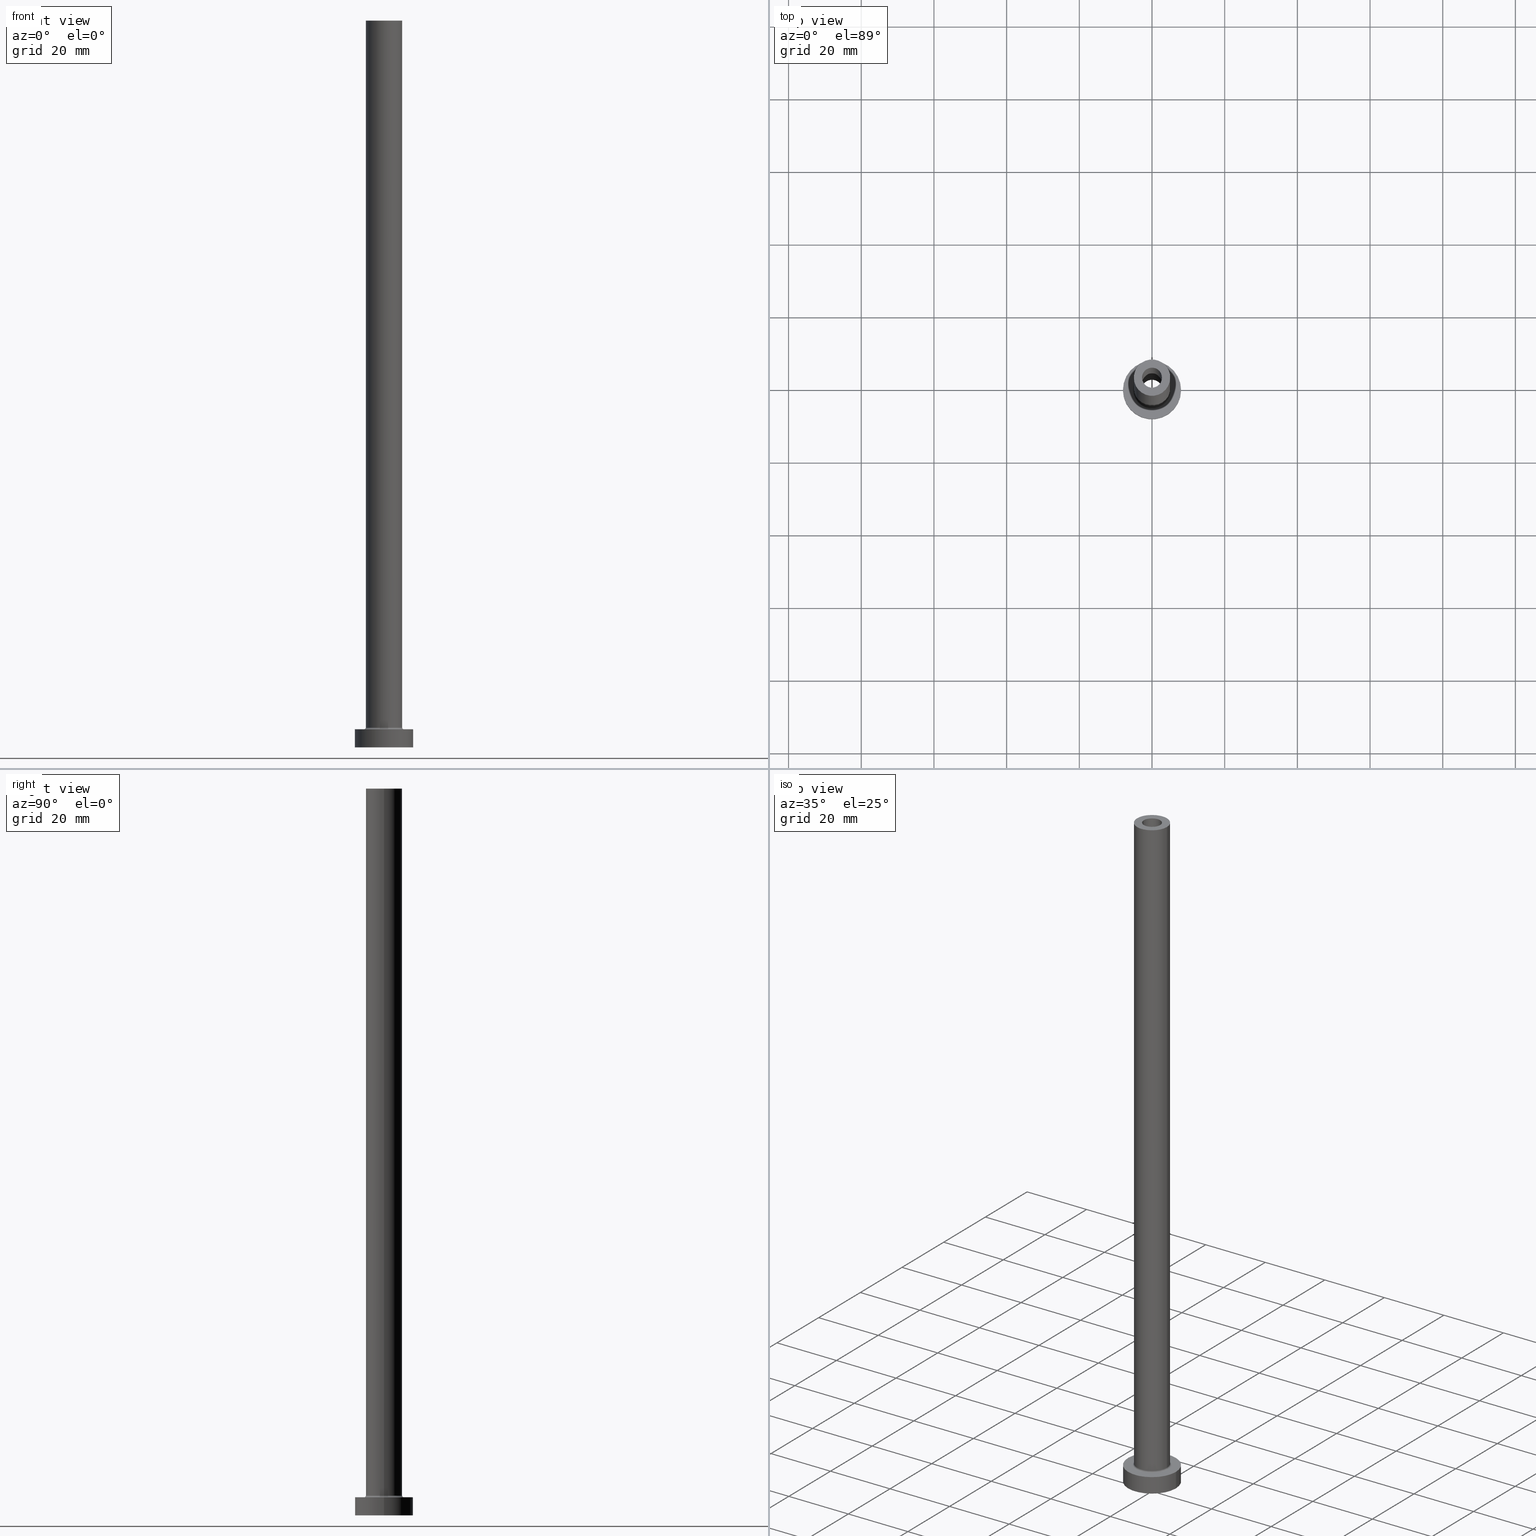
[diagram: canonical four-view strip — front | top / right | iso, engineering-drawing reading convention]
A machine part, canonical four-view strip (front | top / right | iso — engineering-drawing reading convention). The complete STEP part file that produces these views, byte-faithful:
ISO-10303-21;
HEADER;
FILE_DESCRIPTION (( 'STEP AP203' ),
    '1' );
FILE_NAME ('dcbb.STEP',
    '2023-02-13T16:14:24',
    ( '' ),
    ( '' ),
    'SwSTEP 2.0',
    'SolidWorks 2019',
    '' );
FILE_SCHEMA (( 'CONFIG_CONTROL_DESIGN' ));
ENDSEC;

DATA;
#1 = AXIS2_PLACEMENT_3D ( 'NONE', #134, #418, #64 ) ;
#2 = DIRECTION ( 'NONE',  ( 1.000000000000000000, 0.000000000000000000, 0.000000000000000000 ) ) ;
#3 = ORIENTED_EDGE ( 'NONE', *, *, #193, .T. ) ;
#4 = CARTESIAN_POINT ( 'NONE',  ( 8.000000000000000000, 9.797174393178825657E-16, 5.000000000000000000 ) ) ;
#5 = ORIENTED_EDGE ( 'NONE', *, *, #297, .F. ) ;
#6 = EDGE_LOOP ( 'NONE', ( #169, #224 ) ) ;
#7 = CC_DESIGN_PERSON_AND_ORGANIZATION_ASSIGNMENT ( #99, #241, ( #144 ) ) ;
#8 = DIRECTION ( 'NONE',  ( 1.000000000000000000, 0.000000000000000000, 0.000000000000000000 ) ) ;
#9 = EDGE_LOOP ( 'NONE', ( #254, #267, #292, #352 ) ) ;
#10 = DIRECTION ( 'NONE',  ( 0.000000000000000000, 0.000000000000000000, 1.000000000000000000 ) ) ;
#11 = VERTEX_POINT ( 'NONE', #379 ) ;
#12 = CARTESIAN_POINT ( 'NONE',  ( 0.000000000000000000, 0.000000000000000000, 155.0000000000000284 ) ) ;
#13 = EDGE_CURVE ( 'NONE', #433, #295, #139, .T. ) ;
#14 = ORIENTED_EDGE ( 'NONE', *, *, #72, .F. ) ;
#15 = DIRECTION ( 'NONE',  ( 1.000000000000000000, 0.000000000000000000, 0.000000000000000000 ) ) ;
#16 = APPROVAL_DATE_TIME ( #415, #43 ) ;
#17 = AXIS2_PLACEMENT_3D ( 'NONE', #121, #158, #8 ) ;
#18 = PRODUCT ( 'dcbb', 'dcbb', '', ( #42 ) ) ;
#19 = CARTESIAN_POINT ( 'NONE',  ( 0.000000000000000000, 0.000000000000000000, 200.0000000000000000 ) ) ;
#20 = APPROVAL_ROLE ( '' ) ;
#21 = DIRECTION ( 'NONE',  ( 1.000000000000000000, 0.000000000000000000, 0.000000000000000000 ) ) ;
#22 = COORDINATED_UNIVERSAL_TIME_OFFSET ( 1, 0, .AHEAD. ) ;
#23 = CARTESIAN_POINT ( 'NONE',  ( 0.000000000000000000, 0.000000000000000000, 5.000000000000000000 ) ) ;
#24 = CARTESIAN_POINT ( 'NONE',  ( 2.750000000000000000, 3.367778697655220519E-16, 155.0000000000000284 ) ) ;
#25 = ADVANCED_FACE ( 'NONE', ( #376, #90 ), #229, .T. ) ;
#26 = APPLICATION_CONTEXT ( 'configuration controlled 3d designs of mechanical parts and assemblies' ) ;
#27 = CYLINDRICAL_SURFACE ( 'NONE', #217, 8.000000000000000000 ) ;
#28 = ORGANIZATION ( 'NEUR�EN�', 'NEUR�EN�', '' ) ;
#29 = VECTOR ( 'NONE', #177, 1000.000000000000000 ) ;
#30 = ORIENTED_EDGE ( 'NONE', *, *, #183, .F. ) ;
#31 = AXIS2_PLACEMENT_3D ( 'NONE', #368, #338, #161 ) ;
#32 = DIRECTION ( 'NONE',  ( 1.000000000000000000, 0.000000000000000000, 0.000000000000000000 ) ) ;
#33 = VERTEX_POINT ( 'NONE', #127 ) ;
#34 = EDGE_CURVE ( 'NONE', #154, #33, #101, .T. ) ;
#35 = CARTESIAN_POINT ( 'NONE',  ( 0.000000000000000000, 0.000000000000000000, 200.0000000000000000 ) ) ;
#36 = EDGE_LOOP ( 'NONE', ( #363, #387, #430, #402 ) ) ;
#37 = AXIS2_PLACEMENT_3D ( 'NONE', #410, #133, #201 ) ;
#38 = LINE ( 'NONE', #186, #329 ) ;
#39 = APPROVAL_STATUS ( 'not_yet_approved' ) ;
#40 = CARTESIAN_POINT ( 'NONE',  ( -2.750000000000000000, 0.000000000000000000, 200.0000000000000000 ) ) ;
#41 = ORIENTED_EDGE ( 'NONE', *, *, #138, .F. ) ;
#42 = MECHANICAL_CONTEXT ( 'NONE', #26, 'mechanical' ) ;
#43 = APPROVAL ( #39, 'NEUR�EN�' ) ;
#44 = ORIENTED_EDGE ( 'NONE', *, *, #319, .F. ) ;
#45 = FACE_OUTER_BOUND ( 'NONE', #248, .T. ) ;
#46 = PERSON_AND_ORGANIZATION ( #135, #28 ) ;
#47 = EDGE_LOOP ( 'NONE', ( #371, #188, #448, #75 ) ) ;
#48 = CIRCLE ( 'NONE', #305, 5.500000000000000000 ) ;
#49 = ORIENTED_EDGE ( 'NONE', *, *, #319, .T. ) ;
#50 = ADVANCED_FACE ( 'NONE', ( #263 ), #200, .F. ) ;
#51 = DIRECTION ( 'NONE',  ( -1.000000000000000000, 0.000000000000000000, 0.000000000000000000 ) ) ;
#52 = LOCAL_TIME ( 17, 14, 24.00000000000000000, #73 ) ;
#53 = DIRECTION ( 'NONE',  ( 0.000000000000000000, 0.000000000000000000, 1.000000000000000000 ) ) ;
#54 = AXIS2_PLACEMENT_3D ( 'NONE', #199, #129, #51 ) ;
#55 = CARTESIAN_POINT ( 'NONE',  ( 0.000000000000000000, 0.000000000000000000, 5.000000000000000000 ) ) ;
#56 = APPROVAL ( #238, 'NEUR�EN�' ) ;
#57 = FACE_OUTER_BOUND ( 'NONE', #395, .T. ) ;
#58 = DIRECTION ( 'NONE',  ( 0.000000000000000000, 0.000000000000000000, 1.000000000000000000 ) ) ;
#59 = PRODUCT_DEFINITION_SHAPE ( 'NONE', 'NONE',  #372 ) ;
#60 = VERTEX_POINT ( 'NONE', #92 ) ;
#61 = CARTESIAN_POINT ( 'NONE',  ( 0.000000000000000000, 0.000000000000000000, 5.500000000000005329 ) ) ;
#62 = AXIS2_PLACEMENT_3D ( 'NONE', #89, #228, #447 ) ;
#63 = EDGE_CURVE ( 'NONE', #122, #60, #396, .T. ) ;
#64 = DIRECTION ( 'NONE',  ( 0.000000000000000000, 0.000000000000000000, -1.000000000000000000 ) ) ;
#65 = DIRECTION ( 'NONE',  ( -0.000000000000000000, -0.000000000000000000, -1.000000000000000000 ) ) ;
#66 = PLANE ( 'NONE',  #442 ) ;
#67 = LINE ( 'NONE', #346, #421 ) ;
#68 = DIRECTION ( 'NONE',  ( 1.000000000000000000, 0.000000000000000000, -0.000000000000000000 ) ) ;
#69 = LOCAL_TIME ( 17, 14, 24.00000000000000000, #22 ) ;
#70 = AXIS2_PLACEMENT_3D ( 'NONE', #95, #341, #268 ) ;
#71 = DIRECTION ( 'NONE',  ( 0.000000000000000000, 0.000000000000000000, 1.000000000000000000 ) ) ;
#72 = EDGE_CURVE ( 'NONE', #88, #330, #194, .T. ) ;
#73 = COORDINATED_UNIVERSAL_TIME_OFFSET ( 1, 0, .AHEAD. ) ;
#74 = CARTESIAN_POINT ( 'NONE',  ( 0.000000000000000000, 0.000000000000000000, 200.0000000000000000 ) ) ;
#75 = ORIENTED_EDGE ( 'NONE', *, *, #310, .F. ) ;
#76 = CARTESIAN_POINT ( 'NONE',  ( 0.000000000000000000, 0.000000000000000000, 0.000000000000000000 ) ) ;
#77 = ORIENTED_EDGE ( 'NONE', *, *, #333, .T. ) ;
#78 = AXIS2_PLACEMENT_3D ( 'NONE', #212, #350, #32 ) ;
#79 = EDGE_CURVE ( 'NONE', #295, #330, #445, .T. ) ;
#80 = LINE ( 'NONE', #219, #202 ) ;
#81 = EDGE_LOOP ( 'NONE', ( #83, #220 ) ) ;
#82 = CARTESIAN_POINT ( 'NONE',  ( 0.000000000000000000, 0.000000000000000000, 200.0000000000000000 ) ) ;
#83 = ORIENTED_EDGE ( 'NONE', *, *, #63, .F. ) ;
#84 = APPLICATION_PROTOCOL_DEFINITION ( 'international standard', 'config_control_design', 1994, #173 ) ;
#85 = ORIENTED_EDGE ( 'NONE', *, *, #34, .T. ) ;
#86 = AXIS2_PLACEMENT_3D ( 'NONE', #331, #259, #257 ) ;
#87 = CARTESIAN_POINT ( 'NONE',  ( 0.000000000000000000, 0.000000000000000000, 5.500000000000005329 ) ) ;
#88 = VERTEX_POINT ( 'NONE', #384 ) ;
#89 = CARTESIAN_POINT ( 'NONE',  ( 0.000000000000000000, 0.000000000000000000, 155.0000000000000284 ) ) ;
#90 = FACE_OUTER_BOUND ( 'NONE', #207, .T. ) ;
#91 = PERSON_AND_ORGANIZATION ( #135, #28 ) ;
#92 = CARTESIAN_POINT ( 'NONE',  ( 2.899999999999999911, 3.551475717527323339E-16, 0.000000000000000000 ) ) ;
#93 = EDGE_CURVE ( 'NONE', #33, #260, #335, .T. ) ;
#94 = PERSON_AND_ORGANIZATION_ROLE ( 'creator' ) ;
#95 = CARTESIAN_POINT ( 'NONE',  ( -5.500000000000000000, 6.735557395310442023E-16, 5.500000000000005329 ) ) ;
#96 = CARTESIAN_POINT ( 'NONE',  ( 0.000000000000000000, 0.000000000000000000, 5.000000000000000000 ) ) ;
#97 = CALENDAR_DATE ( 2023, 13, 2 ) ;
#98 = ORIENTED_EDGE ( 'NONE', *, *, #255, .T. ) ;
#99 = PERSON_AND_ORGANIZATION ( #135, #28 ) ;
#100 = EDGE_CURVE ( 'NONE', #276, #260, #152, .T. ) ;
#101 = LINE ( 'NONE', #300, #265 ) ;
#102 = DIRECTION ( 'NONE',  ( 0.000000000000000000, 0.000000000000000000, 1.000000000000000000 ) ) ;
#103 = CLOSED_SHELL ( 'NONE', ( #357, #383, #409, #227, #206, #417, #449, #128, #443, #25, #401, #388, #270, #50 ) ) ;
#104 = PERSON_AND_ORGANIZATION ( #135, #28 ) ;
#105 = CIRCLE ( 'NONE', #359, 8.000000000000000000 ) ;
#106 = DESIGN_CONTEXT ( 'detailed design', #173, 'design' ) ;
#107 = LINE ( 'NONE', #458, #343 ) ;
#108 = PLANE ( 'NONE',  #195 ) ;
#109 = DATE_AND_TIME ( #115, #342 ) ;
#110 = APPROVAL_STATUS ( 'not_yet_approved' ) ;
#111 = CARTESIAN_POINT ( 'NONE',  ( -2.899999999999999911, 0.000000000000000000, 163.2024386617639777 ) ) ;
#112 = CIRCLE ( 'NONE', #366, 2.750000000000000000 ) ;
#113 = LINE ( 'NONE', #427, #245 ) ;
#114 = DIRECTION ( 'NONE',  ( -1.000000000000000000, 0.000000000000000000, 0.000000000000000000 ) ) ;
#115 = CALENDAR_DATE ( 2023, 13, 2 ) ;
#116 = EDGE_LOOP ( 'NONE', ( #399, #44 ) ) ;
#117 = EDGE_CURVE ( 'NONE', #179, #276, #411, .T. ) ;
#118 = VERTEX_POINT ( 'NONE', #271 ) ;
#119 = AXIS2_PLACEMENT_3D ( 'NONE', #87, #441, #226 ) ;
#120 = AXIS2_PLACEMENT_3D ( 'NONE', #61, #345, #21 ) ;
#121 = CARTESIAN_POINT ( 'NONE',  ( 0.000000000000000000, 0.000000000000000000, 0.000000000000000000 ) ) ;
#122 = VERTEX_POINT ( 'NONE', #422 ) ;
#123 = ORIENTED_EDGE ( 'NONE', *, *, #147, .F. ) ;
#124 = CC_DESIGN_PERSON_AND_ORGANIZATION_ASSIGNMENT ( #304, #131, ( #172 ) ) ;
#125 = ORIENTED_EDGE ( 'NONE', *, *, #193, .F. ) ;
#126 = CIRCLE ( 'NONE', #390, 5.000000000000000000 ) ;
#127 = CARTESIAN_POINT ( 'NONE',  ( -5.000000000000000000, 0.000000000000000000, 5.500000000000005329 ) ) ;
#128 = ADVANCED_FACE ( 'NONE', ( #386, #320 ), #66, .F. ) ;
#129 = DIRECTION ( 'NONE',  ( 0.000000000000000000, 0.000000000000000000, -1.000000000000000000 ) ) ;
#130 = DIRECTION ( 'NONE',  ( -0.000000000000000000, -0.000000000000000000, -1.000000000000000000 ) ) ;
#131 = PERSON_AND_ORGANIZATION_ROLE ( 'design_supplier' ) ;
#132 = CC_DESIGN_SECURITY_CLASSIFICATION ( #144, ( #172 ) ) ;
#133 = DIRECTION ( 'NONE',  ( 0.000000000000000000, 0.000000000000000000, -1.000000000000000000 ) ) ;
#134 = CARTESIAN_POINT ( 'NONE',  ( 5.500000000000000000, 0.000000000000000000, 5.500000000000005329 ) ) ;
#135 = PERSON ( 'NEUR�EN�', 'NEUR�EN�', 'NEUR�EN�', ('NEUR�EN�'), ('NEUR�EN�'), ('NEUR�EN�') ) ;
#136 = CARTESIAN_POINT ( 'NONE',  ( 0.000000000000000000, 0.000000000000000000, 5.000000000000000000 ) ) ;
#137 = CARTESIAN_POINT ( 'NONE',  ( 2.750000000000000000, 3.367778697655220519E-16, 200.0000000000000000 ) ) ;
#138 = EDGE_CURVE ( 'NONE', #433, #88, #107, .T. ) ;
#139 = CIRCLE ( 'NONE', #356, 8.000000000000000000 ) ;
#140 = AXIS2_PLACEMENT_3D ( 'NONE', #453, #423, #316 ) ;
#141 = DIRECTION ( 'NONE',  ( 0.000000000000000000, 0.000000000000000000, -1.000000000000000000 ) ) ;
#142 = FACE_BOUND ( 'NONE', #218, .T. ) ;
#143 = CC_DESIGN_DATE_AND_TIME_ASSIGNMENT ( #197, #301, ( #144 ) ) ;
#144 = SECURITY_CLASSIFICATION ( '', '', #378 ) ;
#145 = DIRECTION ( 'NONE',  ( 1.000000000000000000, 0.000000000000000000, 0.000000000000000000 ) ) ;
#146 = CIRCLE ( 'NONE', #313, 5.000000000000000000 ) ;
#147 = EDGE_CURVE ( 'NONE', #457, #154, #146, .T. ) ;
#148 = ORIENTED_EDGE ( 'NONE', *, *, #297, .T. ) ;
#149 = CARTESIAN_POINT ( 'NONE',  ( 0.000000000000000000, 0.000000000000000000, 155.0000000000000284 ) ) ;
#150 = CARTESIAN_POINT ( 'NONE',  ( 2.899999999999999911, 3.551475717527323339E-16, 155.0000000000000284 ) ) ;
#151 = ORIENTED_EDGE ( 'NONE', *, *, #250, .T. ) ;
#152 = CIRCLE ( 'NONE', #349, 5.500000000000000000 ) ;
#153 = DIRECTION ( 'NONE',  ( 0.000000000000000000, 0.000000000000000000, 1.000000000000000000 ) ) ;
#154 = VERTEX_POINT ( 'NONE', #261 ) ;
#155 = EDGE_CURVE ( 'NONE', #179, #33, #405, .T. ) ;
#156 = EDGE_LOOP ( 'NONE', ( #5, #191, #98, #171 ) ) ;
#157 = DIRECTION ( 'NONE',  ( 1.000000000000000000, 0.000000000000000000, 0.000000000000000000 ) ) ;
#158 = DIRECTION ( 'NONE',  ( 0.000000000000000000, 0.000000000000000000, 1.000000000000000000 ) ) ;
#159 = ORIENTED_EDGE ( 'NONE', *, *, #394, .T. ) ;
#160 = TOROIDAL_SURFACE ( 'NONE', #120, 5.500000000000000000, 0.5000000000000000000 ) ;
#161 = DIRECTION ( 'NONE',  ( 1.000000000000000000, 0.000000000000000000, 0.000000000000000000 ) ) ;
#162 = CC_DESIGN_PERSON_AND_ORGANIZATION_ASSIGNMENT ( #46, #400, ( #18 ) ) ;
#163 = DIRECTION ( 'NONE',  ( 1.000000000000000000, 0.000000000000000000, 0.000000000000000000 ) ) ;
#164 = DIRECTION ( 'NONE',  ( 0.000000000000000000, 0.000000000000000000, 1.000000000000000000 ) ) ;
#165 = DIRECTION ( 'NONE',  ( -0.000000000000000000, -0.000000000000000000, -1.000000000000000000 ) ) ;
#166 = CIRCLE ( 'NONE', #62, 2.899999999999999911 ) ;
#167 = FACE_OUTER_BOUND ( 'NONE', #156, .T. ) ;
#168 = SHAPE_DEFINITION_REPRESENTATION ( #59, #208 ) ;
#169 = ORIENTED_EDGE ( 'NONE', *, *, #454, .F. ) ;
#170 = CYLINDRICAL_SURFACE ( 'NONE', #140, 5.000000000000000000 ) ;
#171 = ORIENTED_EDGE ( 'NONE', *, *, #63, .T. ) ;
#172 = PRODUCT_DEFINITION_FORMATION_WITH_SPECIFIED_SOURCE ( 'LIBOVOLN�', '', #18, .NOT_KNOWN. ) ;
#173 = APPLICATION_CONTEXT ( 'configuration controlled 3d designs of mechanical parts and assemblies' ) ;
#174 = DIRECTION ( 'NONE',  ( -1.000000000000000000, 0.000000000000000000, 0.000000000000000000 ) ) ;
#175 = CIRCLE ( 'NONE', #225, 2.750000000000000000 ) ;
#176 = AXIS2_PLACEMENT_3D ( 'NONE', #419, #102, #240 ) ;
#177 = DIRECTION ( 'NONE',  ( 0.000000000000000000, 0.000000000000000000, -1.000000000000000000 ) ) ;
#178 = APPROVAL ( #110, 'NEUR�EN�' ) ;
#179 = VERTEX_POINT ( 'NONE', #404 ) ;
#180 = CARTESIAN_POINT ( 'NONE',  ( 0.000000000000000000, 0.000000000000000000, 200.0000000000000000 ) ) ;
#181 = CARTESIAN_POINT ( 'NONE',  ( 5.000000000000000000, 6.123233995736766282E-16, 200.0000000000000000 ) ) ;
#182 = ORIENTED_EDGE ( 'NONE', *, *, #155, .T. ) ;
#183 = EDGE_CURVE ( 'NONE', #389, #428, #80, .T. ) ;
#184 = CIRCLE ( 'NONE', #446, 2.899999999999999911 ) ;
#185 = ORIENTED_EDGE ( 'NONE', *, *, #237, .T. ) ;
#186 = CARTESIAN_POINT ( 'NONE',  ( -2.750000000000000000, 0.000000000000000000, 200.0000000000000000 ) ) ;
#187 = FACE_OUTER_BOUND ( 'NONE', #256, .T. ) ;
#188 = ORIENTED_EDGE ( 'NONE', *, *, #155, .F. ) ;
#189 = CARTESIAN_POINT ( 'NONE',  ( 0.000000000000000000, 0.000000000000000000, 5.000000000000000000 ) ) ;
#190 = EDGE_LOOP ( 'NONE', ( #30, #49, #437, #266 ) ) ;
#191 = ORIENTED_EDGE ( 'NONE', *, *, #215, .T. ) ;
#192 =( NAMED_UNIT ( * ) SI_UNIT ( $, .STERADIAN. ) SOLID_ANGLE_UNIT ( ) );
#193 = EDGE_CURVE ( 'NONE', #33, #179, #239, .T. ) ;
#194 = CIRCLE ( 'NONE', #420, 8.000000000000000000 ) ;
#195 = AXIS2_PLACEMENT_3D ( 'NONE', #55, #71, #284 ) ;
#196 = DIRECTION ( 'NONE',  ( 1.000000000000000000, 0.000000000000000000, 0.000000000000000000 ) ) ;
#197 = DATE_AND_TIME ( #97, #230 ) ;
#198 = CARTESIAN_POINT ( 'NONE',  ( 0.000000000000000000, 0.000000000000000000, 0.000000000000000000 ) ) ;
#199 = CARTESIAN_POINT ( 'NONE',  ( 0.000000000000000000, 0.000000000000000000, 200.0000000000000000 ) ) ;
#200 = CYLINDRICAL_SURFACE ( 'NONE', #37, 2.750000000000000000 ) ;
#201 = DIRECTION ( 'NONE',  ( -1.000000000000000000, 0.000000000000000000, 0.000000000000000000 ) ) ;
#202 = VECTOR ( 'NONE', #221, 1000.000000000000000 ) ;
#203 = DIRECTION ( 'NONE',  ( -1.000000000000000000, 0.000000000000000000, 0.000000000000000000 ) ) ;
#204 = DIRECTION ( 'NONE',  ( 0.000000000000000000, 0.000000000000000000, 1.000000000000000000 ) ) ;
#205 = FACE_OUTER_BOUND ( 'NONE', #416, .T. ) ;
#206 = ADVANCED_FACE ( 'NONE', ( #45 ), #369, .T. ) ;
#207 = EDGE_LOOP ( 'NONE', ( #151, #393 ) ) ;
#208 = ADVANCED_BREP_SHAPE_REPRESENTATION ( 'dcbb', ( #264, #17 ), #434 ) ;
#209 = AXIS2_PLACEMENT_3D ( 'NONE', #189, #334, #408 ) ;
#210 = LINE ( 'NONE', #111, #29 ) ;
#211 = DIRECTION ( 'NONE',  ( -0.000000000000000000, -0.000000000000000000, -1.000000000000000000 ) ) ;
#212 = CARTESIAN_POINT ( 'NONE',  ( 0.000000000000000000, 0.000000000000000000, 155.0000000000000284 ) ) ;
#213 = DIRECTION ( 'NONE',  ( 0.000000000000000000, 0.000000000000000000, 1.000000000000000000 ) ) ;
#214 = ORIENTED_EDGE ( 'NONE', *, *, #250, .F. ) ;
#215 = EDGE_CURVE ( 'NONE', #461, #118, #166, .T. ) ;
#216 = AXIS2_PLACEMENT_3D ( 'NONE', #344, #308, #235 ) ;
#217 = AXIS2_PLACEMENT_3D ( 'NONE', #311, #65, #203 ) ;
#218 = EDGE_LOOP ( 'NONE', ( #439, #185 ) ) ;
#219 = CARTESIAN_POINT ( 'NONE',  ( 2.750000000000000000, 3.367778697655220519E-16, 200.0000000000000000 ) ) ;
#220 = ORIENTED_EDGE ( 'NONE', *, *, #280, .F. ) ;
#221 = DIRECTION ( 'NONE',  ( 0.000000000000000000, 0.000000000000000000, -1.000000000000000000 ) ) ;
#222 = EDGE_CURVE ( 'NONE', #293, #389, #374, .T. ) ;
#223 = ORIENTED_EDGE ( 'NONE', *, *, #425, .T. ) ;
#224 = ORIENTED_EDGE ( 'NONE', *, *, #215, .F. ) ;
#225 = AXIS2_PLACEMENT_3D ( 'NONE', #149, #153, #358 ) ;
#226 = DIRECTION ( 'NONE',  ( 1.000000000000000000, 0.000000000000000000, 0.000000000000000000 ) ) ;
#227 = ADVANCED_FACE ( 'NONE', ( #187 ), #327, .T. ) ;
#228 = DIRECTION ( 'NONE',  ( 0.000000000000000000, 0.000000000000000000, 1.000000000000000000 ) ) ;
#229 = PLANE ( 'NONE',  #233 ) ;
#230 = LOCAL_TIME ( 17, 14, 24.00000000000000000, #381 ) ;
#231 = COORDINATED_UNIVERSAL_TIME_OFFSET ( 1, 0, .AHEAD. ) ;
#232 = CC_DESIGN_APPROVAL ( #43, ( #172 ) ) ;
#233 = AXIS2_PLACEMENT_3D ( 'NONE', #299, #58, #336 ) ;
#234 = TOROIDAL_SURFACE ( 'NONE', #176, 5.500000000000000000, 0.5000000000000000000 ) ;
#235 = DIRECTION ( 'NONE',  ( 1.000000000000000000, 0.000000000000000000, 0.000000000000000000 ) ) ;
#236 = ORIENTED_EDGE ( 'NONE', *, *, #255, .F. ) ;
#237 = EDGE_CURVE ( 'NONE', #428, #11, #175, .T. ) ;
#238 = APPROVAL_STATUS ( 'not_yet_approved' ) ;
#239 = CIRCLE ( 'NONE', #119, 5.000000000000000000 ) ;
#240 = DIRECTION ( 'NONE',  ( 1.000000000000000000, 0.000000000000000000, 0.000000000000000000 ) ) ;
#241 = PERSON_AND_ORGANIZATION_ROLE ( 'classification_officer' ) ;
#242 = EDGE_CURVE ( 'NONE', #293, #11, #38, .T. ) ;
#243 = DIRECTION ( 'NONE',  ( -0.000000000000000000, -0.000000000000000000, -1.000000000000000000 ) ) ;
#244 = APPROVAL_DATE_TIME ( #109, #178 ) ;
#245 = VECTOR ( 'NONE', #275, 1000.000000000000000 ) ;
#246 = PERSON_AND_ORGANIZATION ( #135, #28 ) ;
#247 = DIRECTION ( 'NONE',  ( 0.000000000000000000, 0.000000000000000000, 1.000000000000000000 ) ) ;
#248 = EDGE_LOOP ( 'NONE', ( #321, #364, #77, #41 ) ) ;
#249 = CARTESIAN_POINT ( 'NONE',  ( 0.000000000000000000, 0.000000000000000000, 5.000000000000000000 ) ) ;
#250 = EDGE_CURVE ( 'NONE', #154, #457, #126, .T. ) ;
#251 = ORIENTED_EDGE ( 'NONE', *, *, #100, .T. ) ;
#252 = CYLINDRICAL_SURFACE ( 'NONE', #298, 2.899999999999999911 ) ;
#253 = CIRCLE ( 'NONE', #291, 2.750000000000000000 ) ;
#254 = ORIENTED_EDGE ( 'NONE', *, *, #79, .F. ) ;
#255 = EDGE_CURVE ( 'NONE', #118, #122, #210, .T. ) ;
#256 = EDGE_LOOP ( 'NONE', ( #123, #223, #182, #435 ) ) ;
#257 = DIRECTION ( 'NONE',  ( 1.000000000000000000, 0.000000000000000000, 0.000000000000000000 ) ) ;
#258 = EDGE_LOOP ( 'NONE', ( #14, #361 ) ) ;
#259 = DIRECTION ( 'NONE',  ( 0.000000000000000000, 0.000000000000000000, 1.000000000000000000 ) ) ;
#260 = VERTEX_POINT ( 'NONE', #432 ) ;
#261 = CARTESIAN_POINT ( 'NONE',  ( -5.000000000000000000, 0.000000000000000000, 200.0000000000000000 ) ) ;
#262 =( NAMED_UNIT ( * ) PLANE_ANGLE_UNIT ( ) SI_UNIT ( $, .RADIAN. ) );
#263 = FACE_OUTER_BOUND ( 'NONE', #190, .T. ) ;
#264 = MANIFOLD_SOLID_BREP ( 'Odebrat vysunut�m4', #103 ) ;
#265 = VECTOR ( 'NONE', #130, 1000.000000000000000 ) ;
#266 = ORIENTED_EDGE ( 'NONE', *, *, #237, .F. ) ;
#267 = ORIENTED_EDGE ( 'NONE', *, *, #13, .F. ) ;
#268 = DIRECTION ( 'NONE',  ( -1.000000000000000000, 1.224646799147351482E-16, 0.000000000000000000 ) ) ;
#269 = DIRECTION ( 'NONE',  ( 0.000000000000000000, 0.000000000000000000, 1.000000000000000000 ) ) ;
#270 = ADVANCED_FACE ( 'NONE', ( #142, #348 ), #459, .F. ) ;
#271 = CARTESIAN_POINT ( 'NONE',  ( -2.899999999999999911, 0.000000000000000000, 155.0000000000000284 ) ) ;
#272 = UNCERTAINTY_MEASURE_WITH_UNIT (LENGTH_MEASURE( 1.000000000000000082E-05 ), #370, 'distance_accuracy_value', 'NONE');
#273 = CIRCLE ( 'NONE', #31, 8.000000000000000000 ) ;
#274 = CARTESIAN_POINT ( 'NONE',  ( 0.000000000000000000, 0.000000000000000000, 163.2024386617639777 ) ) ;
#275 = DIRECTION ( 'NONE',  ( 0.000000000000000000, 0.000000000000000000, -1.000000000000000000 ) ) ;
#276 = VERTEX_POINT ( 'NONE', #351 ) ;
#277 = DIRECTION ( 'NONE',  ( 1.000000000000000000, 0.000000000000000000, -0.000000000000000000 ) ) ;
#278 = FACE_OUTER_BOUND ( 'NONE', #318, .T. ) ;
#279 = ORIENTED_EDGE ( 'NONE', *, *, #117, .F. ) ;
#280 = EDGE_CURVE ( 'NONE', #60, #122, #184, .T. ) ;
#281 = PERSON_AND_ORGANIZATION_ROLE ( 'creator' ) ;
#282 = ORIENTED_EDGE ( 'NONE', *, *, #425, .F. ) ;
#283 = DIRECTION ( 'NONE',  ( -0.000000000000000000, -0.000000000000000000, -1.000000000000000000 ) ) ;
#284 = DIRECTION ( 'NONE',  ( 1.000000000000000000, 0.000000000000000000, -0.000000000000000000 ) ) ;
#285 = DATE_AND_TIME ( #353, #52 ) ;
#286 = DIRECTION ( 'NONE',  ( 0.000000000000000000, 0.000000000000000000, 1.000000000000000000 ) ) ;
#287 = CC_DESIGN_APPROVAL ( #56, ( #144 ) ) ;
#288 = CC_DESIGN_PERSON_AND_ORGANIZATION_ASSIGNMENT ( #246, #281, ( #372 ) ) ;
#289 = CC_DESIGN_APPROVAL ( #178, ( #372 ) ) ;
#290 = AXIS2_PLACEMENT_3D ( 'NONE', #424, #247, #68 ) ;
#291 = AXIS2_PLACEMENT_3D ( 'NONE', #12, #164, #163 ) ;
#292 = ORIENTED_EDGE ( 'NONE', *, *, #138, .T. ) ;
#293 = VERTEX_POINT ( 'NONE', #40 ) ;
#294 = DIRECTION ( 'NONE',  ( 1.000000000000000000, 0.000000000000000000, 0.000000000000000000 ) ) ;
#295 = VERTEX_POINT ( 'NONE', #4 ) ;
#296 = APPLICATION_PROTOCOL_DEFINITION ( 'international standard', 'config_control_design', 1994, #26 ) ;
#297 = EDGE_CURVE ( 'NONE', #461, #60, #113, .T. ) ;
#298 = AXIS2_PLACEMENT_3D ( 'NONE', #309, #347, #174 ) ;
#299 = CARTESIAN_POINT ( 'NONE',  ( 0.000000000000000000, 0.000000000000000000, 200.0000000000000000 ) ) ;
#300 = CARTESIAN_POINT ( 'NONE',  ( -5.000000000000000000, 0.000000000000000000, 200.0000000000000000 ) ) ;
#301 = DATE_TIME_ROLE ( 'classification_date' ) ;
#302 = CC_DESIGN_DATE_AND_TIME_ASSIGNMENT ( #285, #431, ( #372 ) ) ;
#303 = APPROVAL_PERSON_ORGANIZATION ( #360, #43, #20 ) ;
#304 = PERSON_AND_ORGANIZATION ( #135, #28 ) ;
#305 = AXIS2_PLACEMENT_3D ( 'NONE', #249, #391, #392 ) ;
#306 = DIRECTION ( 'NONE',  ( 1.000000000000000000, 0.000000000000000000, 0.000000000000000000 ) ) ;
#307 = CYLINDRICAL_SURFACE ( 'NONE', #315, 2.899999999999999911 ) ;
#308 = DIRECTION ( 'NONE',  ( -0.000000000000000000, -0.000000000000000000, -1.000000000000000000 ) ) ;
#309 = CARTESIAN_POINT ( 'NONE',  ( 0.000000000000000000, 0.000000000000000000, 163.2024386617639777 ) ) ;
#310 = EDGE_CURVE ( 'NONE', #260, #276, #48, .T. ) ;
#311 = CARTESIAN_POINT ( 'NONE',  ( 0.000000000000000000, 0.000000000000000000, 5.000000000000000000 ) ) ;
#312 = LOCAL_TIME ( 17, 14, 24.00000000000000000, #231 ) ;
#313 = AXIS2_PLACEMENT_3D ( 'NONE', #180, #460, #294 ) ;
#314 = CARTESIAN_POINT ( 'NONE',  ( 0.000000000000000000, 0.000000000000000000, 0.000000000000000000 ) ) ;
#315 = AXIS2_PLACEMENT_3D ( 'NONE', #274, #141, #414 ) ;
#316 = DIRECTION ( 'NONE',  ( -1.000000000000000000, 0.000000000000000000, 0.000000000000000000 ) ) ;
#317 = COORDINATED_UNIVERSAL_TIME_OFFSET ( 1, 0, .AHEAD. ) ;
#318 = EDGE_LOOP ( 'NONE', ( #367, #159 ) ) ;
#319 = EDGE_CURVE ( 'NONE', #389, #293, #112, .T. ) ;
#320 = FACE_OUTER_BOUND ( 'NONE', #258, .T. ) ;
#321 = ORIENTED_EDGE ( 'NONE', *, *, #394, .F. ) ;
#322 = AXIS2_PLACEMENT_3D ( 'NONE', #35, #283, #114 ) ;
#323 = DIRECTION ( 'NONE',  ( 1.000000000000000000, 0.000000000000000000, 0.000000000000000000 ) ) ;
#324 = ORIENTED_EDGE ( 'NONE', *, *, #454, .T. ) ;
#325 = EDGE_CURVE ( 'NONE', #11, #428, #253, .T. ) ;
#326 = ORIENTED_EDGE ( 'NONE', *, *, #310, .T. ) ;
#327 = CYLINDRICAL_SURFACE ( 'NONE', #322, 5.000000000000000000 ) ;
#328 = APPROVAL_PERSON_ORGANIZATION ( #365, #178, #362 ) ;
#329 = VECTOR ( 'NONE', #436, 1000.000000000000000 ) ;
#330 = VERTEX_POINT ( 'NONE', #412 ) ;
#331 = CARTESIAN_POINT ( 'NONE',  ( 0.000000000000000000, 0.000000000000000000, 5.500000000000005329 ) ) ;
#332 = EDGE_LOOP ( 'NONE', ( #251, #326 ) ) ;
#333 = EDGE_CURVE ( 'NONE', #330, #88, #273, .T. ) ;
#334 = DIRECTION ( 'NONE',  ( -0.000000000000000000, -0.000000000000000000, -1.000000000000000000 ) ) ;
#335 = CIRCLE ( 'NONE', #70, 0.5000000000000004441 ) ;
#336 = DIRECTION ( 'NONE',  ( 1.000000000000000000, 0.000000000000000000, -0.000000000000000000 ) ) ;
#337 = CC_DESIGN_PERSON_AND_ORGANIZATION_ASSIGNMENT ( #104, #94, ( #172 ) ) ;
#338 = DIRECTION ( 'NONE',  ( 0.000000000000000000, 0.000000000000000000, 1.000000000000000000 ) ) ;
#339 = DIRECTION ( 'NONE',  ( 0.000000000000000000, 0.000000000000000000, 1.000000000000000000 ) ) ;
#340 = CALENDAR_DATE ( 2023, 13, 2 ) ;
#341 = DIRECTION ( 'NONE',  ( 1.224646799147353207E-16, 1.000000000000000000, -0.000000000000000000 ) ) ;
#342 = LOCAL_TIME ( 17, 14, 24.00000000000000000, #317 ) ;
#343 = VECTOR ( 'NONE', #211, 1000.000000000000000 ) ;
#344 = CARTESIAN_POINT ( 'NONE',  ( 0.000000000000000000, 0.000000000000000000, 0.000000000000000000 ) ) ;
#345 = DIRECTION ( 'NONE',  ( 0.000000000000000000, 0.000000000000000000, 1.000000000000000000 ) ) ;
#346 = CARTESIAN_POINT ( 'NONE',  ( 5.000000000000000000, 6.123233995736766282E-16, 200.0000000000000000 ) ) ;
#347 = DIRECTION ( 'NONE',  ( 0.000000000000000000, 0.000000000000000000, -1.000000000000000000 ) ) ;
#348 = FACE_OUTER_BOUND ( 'NONE', #6, .T. ) ;
#349 = AXIS2_PLACEMENT_3D ( 'NONE', #136, #165, #306 ) ;
#350 = DIRECTION ( 'NONE',  ( 0.000000000000000000, 0.000000000000000000, 1.000000000000000000 ) ) ;
#351 = CARTESIAN_POINT ( 'NONE',  ( 5.500000000000000000, 0.000000000000000000, 5.000000000000002665 ) ) ;
#352 = ORIENTED_EDGE ( 'NONE', *, *, #72, .T. ) ;
#353 = CALENDAR_DATE ( 2023, 13, 2 ) ;
#354 = DIRECTION ( 'NONE',  ( -0.000000000000000000, -0.000000000000000000, -1.000000000000000000 ) ) ;
#355 = ORIENTED_EDGE ( 'NONE', *, *, #100, .F. ) ;
#356 = AXIS2_PLACEMENT_3D ( 'NONE', #23, #53, #196 ) ;
#357 = ADVANCED_FACE ( 'NONE', ( #397 ), #407, .F. ) ;
#358 = DIRECTION ( 'NONE',  ( 1.000000000000000000, 0.000000000000000000, 0.000000000000000000 ) ) ;
#359 = AXIS2_PLACEMENT_3D ( 'NONE', #96, #269, #377 ) ;
#360 = PERSON_AND_ORGANIZATION ( #135, #28 ) ;
#361 = ORIENTED_EDGE ( 'NONE', *, *, #333, .F. ) ;
#362 = APPROVAL_ROLE ( '' ) ;
#363 = ORIENTED_EDGE ( 'NONE', *, *, #222, .T. ) ;
#364 = ORIENTED_EDGE ( 'NONE', *, *, #79, .T. ) ;
#365 = PERSON_AND_ORGANIZATION ( #135, #28 ) ;
#366 = AXIS2_PLACEMENT_3D ( 'NONE', #74, #213, #323 ) ;
#367 = ORIENTED_EDGE ( 'NONE', *, *, #13, .T. ) ;
#368 = CARTESIAN_POINT ( 'NONE',  ( 0.000000000000000000, 0.000000000000000000, 0.000000000000000000 ) ) ;
#369 = CYLINDRICAL_SURFACE ( 'NONE', #209, 8.000000000000000000 ) ;
#370 =( LENGTH_UNIT ( ) NAMED_UNIT ( * ) SI_UNIT ( .MILLI., .METRE. ) );
#371 = ORIENTED_EDGE ( 'NONE', *, *, #93, .F. ) ;
#372 = PRODUCT_DEFINITION ( 'NEZN�M�', '', #172, #106 ) ;
#373 = APPROVAL_DATE_TIME ( #444, #56 ) ;
#374 = CIRCLE ( 'NONE', #382, 2.750000000000000000 ) ;
#375 = APPROVAL_ROLE ( '' ) ;
#376 = FACE_BOUND ( 'NONE', #116, .T. ) ;
#377 = DIRECTION ( 'NONE',  ( 1.000000000000000000, 0.000000000000000000, 0.000000000000000000 ) ) ;
#378 = SECURITY_CLASSIFICATION_LEVEL ( 'unclassified' ) ;
#379 = CARTESIAN_POINT ( 'NONE',  ( -2.750000000000000000, 0.000000000000000000, 155.0000000000000284 ) ) ;
#380 = FACE_OUTER_BOUND ( 'NONE', #440, .T. ) ;
#381 = COORDINATED_UNIVERSAL_TIME_OFFSET ( 1, 0, .AHEAD. ) ;
#382 = AXIS2_PLACEMENT_3D ( 'NONE', #19, #286, #145 ) ;
#383 = ADVANCED_FACE ( 'NONE', ( #57 ), #252, .F. ) ;
#384 = CARTESIAN_POINT ( 'NONE',  ( -8.000000000000000000, 0.000000000000000000, 0.000000000000000000 ) ) ;
#385 = FACE_OUTER_BOUND ( 'NONE', #9, .T. ) ;
#386 = FACE_BOUND ( 'NONE', #81, .T. ) ;
#387 = ORIENTED_EDGE ( 'NONE', *, *, #183, .T. ) ;
#388 = ADVANCED_FACE ( 'NONE', ( #167 ), #307, .F. ) ;
#389 = VERTEX_POINT ( 'NONE', #137 ) ;
#390 = AXIS2_PLACEMENT_3D ( 'NONE', #82, #10, #157 ) ;
#391 = DIRECTION ( 'NONE',  ( -0.000000000000000000, -0.000000000000000000, -1.000000000000000000 ) ) ;
#392 = DIRECTION ( 'NONE',  ( 1.000000000000000000, 0.000000000000000000, 0.000000000000000000 ) ) ;
#393 = ORIENTED_EDGE ( 'NONE', *, *, #147, .T. ) ;
#394 = EDGE_CURVE ( 'NONE', #295, #433, #105, .T. ) ;
#395 = EDGE_LOOP ( 'NONE', ( #324, #148, #398, #236 ) ) ;
#396 = CIRCLE ( 'NONE', #216, 2.899999999999999911 ) ;
#397 = FACE_OUTER_BOUND ( 'NONE', #36, .T. ) ;
#398 = ORIENTED_EDGE ( 'NONE', *, *, #280, .T. ) ;
#399 = ORIENTED_EDGE ( 'NONE', *, *, #222, .F. ) ;
#400 = PERSON_AND_ORGANIZATION_ROLE ( 'design_owner' ) ;
#401 = ADVANCED_FACE ( 'NONE', ( #450 ), #160, .F. ) ;
#402 = ORIENTED_EDGE ( 'NONE', *, *, #242, .F. ) ;
#403 = APPROVAL_PERSON_ORGANIZATION ( #91, #56, #375 ) ;
#404 = CARTESIAN_POINT ( 'NONE',  ( 5.000000000000000000, 6.123233995736766282E-16, 5.500000000000005329 ) ) ;
#405 = CIRCLE ( 'NONE', #86, 5.000000000000000000 ) ;
#406 = ORIENTED_EDGE ( 'NONE', *, *, #93, .T. ) ;
#407 = CYLINDRICAL_SURFACE ( 'NONE', #54, 2.750000000000000000 ) ;
#408 = DIRECTION ( 'NONE',  ( -1.000000000000000000, 0.000000000000000000, 0.000000000000000000 ) ) ;
#409 = ADVANCED_FACE ( 'NONE', ( #380 ), #234, .F. ) ;
#410 = CARTESIAN_POINT ( 'NONE',  ( 0.000000000000000000, 0.000000000000000000, 200.0000000000000000 ) ) ;
#411 = CIRCLE ( 'NONE', #1, 0.5000000000000004441 ) ;
#412 = CARTESIAN_POINT ( 'NONE',  ( 8.000000000000000000, 9.797174393178825657E-16, 0.000000000000000000 ) ) ;
#413 = CARTESIAN_POINT ( 'NONE',  ( 8.000000000000000000, 9.797174393178825657E-16, 5.000000000000000000 ) ) ;
#414 = DIRECTION ( 'NONE',  ( -1.000000000000000000, 0.000000000000000000, 0.000000000000000000 ) ) ;
#415 = DATE_AND_TIME ( #451, #69 ) ;
#416 = EDGE_LOOP ( 'NONE', ( #282, #214, #85, #3 ) ) ;
#417 = ADVANCED_FACE ( 'NONE', ( #385 ), #27, .T. ) ;
#418 = DIRECTION ( 'NONE',  ( 0.000000000000000000, -1.000000000000000000, 0.000000000000000000 ) ) ;
#419 = CARTESIAN_POINT ( 'NONE',  ( 0.000000000000000000, 0.000000000000000000, 5.500000000000005329 ) ) ;
#420 = AXIS2_PLACEMENT_3D ( 'NONE', #198, #339, #15 ) ;
#421 = VECTOR ( 'NONE', #243, 1000.000000000000000 ) ;
#422 = CARTESIAN_POINT ( 'NONE',  ( -2.899999999999999911, 0.000000000000000000, 0.000000000000000000 ) ) ;
#423 = DIRECTION ( 'NONE',  ( -0.000000000000000000, -0.000000000000000000, -1.000000000000000000 ) ) ;
#424 = CARTESIAN_POINT ( 'NONE',  ( 0.000000000000000000, 0.000000000000000000, 155.0000000000000284 ) ) ;
#425 = EDGE_CURVE ( 'NONE', #457, #179, #67, .T. ) ;
#426 = CARTESIAN_POINT ( 'NONE',  ( -8.000000000000000000, 0.000000000000000000, 5.000000000000000000 ) ) ;
#427 = CARTESIAN_POINT ( 'NONE',  ( 2.899999999999999911, 3.551475717527323339E-16, 163.2024386617639777 ) ) ;
#428 = VERTEX_POINT ( 'NONE', #24 ) ;
#429 = VECTOR ( 'NONE', #452, 1000.000000000000000 ) ;
#430 = ORIENTED_EDGE ( 'NONE', *, *, #325, .F. ) ;
#431 = DATE_TIME_ROLE ( 'creation_date' ) ;
#432 = CARTESIAN_POINT ( 'NONE',  ( -5.500000000000000000, 6.735557395310442023E-16, 5.000000000000002665 ) ) ;
#433 = VERTEX_POINT ( 'NONE', #426 ) ;
#434 =( GEOMETRIC_REPRESENTATION_CONTEXT ( 3 ) GLOBAL_UNCERTAINTY_ASSIGNED_CONTEXT ( ( #272 ) ) GLOBAL_UNIT_ASSIGNED_CONTEXT ( ( #370, #262, #192 ) ) REPRESENTATION_CONTEXT ( 'NONE', 'WORKASPACE' ) );
#435 = ORIENTED_EDGE ( 'NONE', *, *, #34, .F. ) ;
#436 = DIRECTION ( 'NONE',  ( 0.000000000000000000, 0.000000000000000000, -1.000000000000000000 ) ) ;
#437 = ORIENTED_EDGE ( 'NONE', *, *, #242, .T. ) ;
#438 = PRODUCT_RELATED_PRODUCT_CATEGORY ( 'detail', '', ( #18 ) ) ;
#439 = ORIENTED_EDGE ( 'NONE', *, *, #325, .T. ) ;
#440 = EDGE_LOOP ( 'NONE', ( #125, #406, #355, #279 ) ) ;
#441 = DIRECTION ( 'NONE',  ( 0.000000000000000000, 0.000000000000000000, 1.000000000000000000 ) ) ;
#442 = AXIS2_PLACEMENT_3D ( 'NONE', #314, #204, #277 ) ;
#443 = ADVANCED_FACE ( 'NONE', ( #205 ), #170, .T. ) ;
#444 = DATE_AND_TIME ( #340, #312 ) ;
#445 = LINE ( 'NONE', #413, #429 ) ;
#446 = AXIS2_PLACEMENT_3D ( 'NONE', #76, #354, #2 ) ;
#447 = DIRECTION ( 'NONE',  ( 1.000000000000000000, 0.000000000000000000, 0.000000000000000000 ) ) ;
#448 = ORIENTED_EDGE ( 'NONE', *, *, #117, .T. ) ;
#449 = ADVANCED_FACE ( 'NONE', ( #456, #278 ), #108, .T. ) ;
#450 = FACE_OUTER_BOUND ( 'NONE', #47, .T. ) ;
#451 = CALENDAR_DATE ( 2023, 13, 2 ) ;
#452 = DIRECTION ( 'NONE',  ( -0.000000000000000000, -0.000000000000000000, -1.000000000000000000 ) ) ;
#453 = CARTESIAN_POINT ( 'NONE',  ( 0.000000000000000000, 0.000000000000000000, 200.0000000000000000 ) ) ;
#454 = EDGE_CURVE ( 'NONE', #118, #461, #455, .T. ) ;
#455 = CIRCLE ( 'NONE', #78, 2.899999999999999911 ) ;
#456 = FACE_BOUND ( 'NONE', #332, .T. ) ;
#457 = VERTEX_POINT ( 'NONE', #181 ) ;
#458 = CARTESIAN_POINT ( 'NONE',  ( -8.000000000000000000, 0.000000000000000000, 5.000000000000000000 ) ) ;
#459 = PLANE ( 'NONE',  #290 ) ;
#460 = DIRECTION ( 'NONE',  ( 0.000000000000000000, 0.000000000000000000, 1.000000000000000000 ) ) ;
#461 = VERTEX_POINT ( 'NONE', #150 ) ;
ENDSEC;
END-ISO-10303-21;
